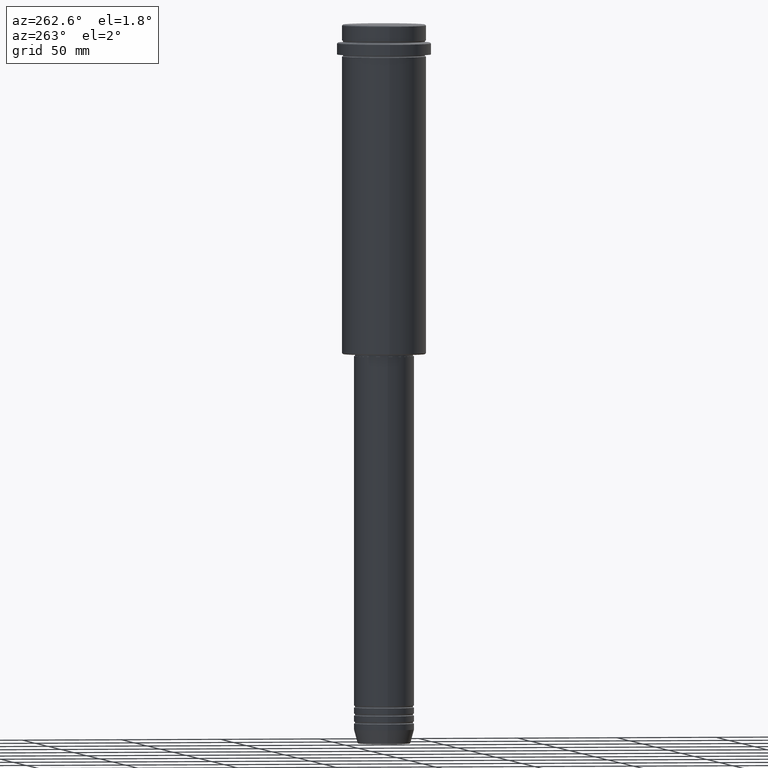
[diagram: clean part render]
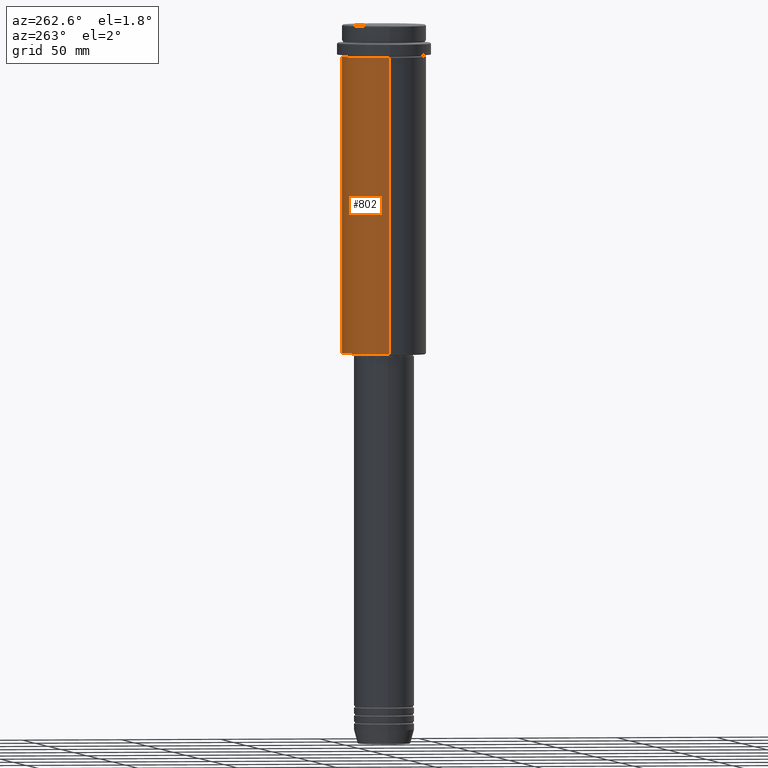
[diagram: same view with one face highlighted and labeled with its STEP entity id]
A machine part, auxiliary view. The second image highlights one B-rep face of the part: STEP entity #802.
In plain terms, the highlighted cylindrical surface (partial cylindrical patch) has radius 21 mm, axis along (-0, -0, 1).
Its self-contained STEP definition (entity closure, byte-faithful):
#56 = ORIENTED_EDGE ( 'NONE', *, *, #212, .T. ) ;
#60 = VERTEX_POINT ( 'NONE', #1044 ) ;
#120 = DIRECTION ( 'NONE',  ( -0.000000000000000000, -0.000000000000000000, 1.000000000000000000 ) ) ;
#137 = EDGE_CURVE ( 'NONE', #389, #60, #1146, .T. ) ;
#148 = CARTESIAN_POINT ( 'NONE',  ( -20.99999999999999645, 2.571758278209441267E-15, 0.000000000000000000 ) ) ;
#159 = CYLINDRICAL_SURFACE ( 'NONE', #853, 20.99999999999999645 ) ;
#167 = DIRECTION ( 'NONE',  ( -0.000000000000000000, -0.000000000000000000, 1.000000000000000000 ) ) ;
#212 = EDGE_CURVE ( 'NONE', #980, #921, #269, .T. ) ;
#231 = VECTOR ( 'NONE', #764, 1000.000000000000000 ) ;
#240 = CARTESIAN_POINT ( 'NONE',  ( 0.000000000000000000, 0.000000000000000000, -16.00000000000000355 ) ) ;
#249 = AXIS2_PLACEMENT_3D ( 'NONE', #240, #120, #689 ) ;
#257 = DIRECTION ( 'NONE',  ( -0.000000000000000000, -0.000000000000000000, 1.000000000000000000 ) ) ;
#269 = CIRCLE ( 'NONE', #314, 20.99999999999999645 ) ;
#305 = CARTESIAN_POINT ( 'NONE',  ( 20.99999999999999645, 0.000000000000000000, 0.000000000000000000 ) ) ;
#314 = AXIS2_PLACEMENT_3D ( 'NONE', #1144, #1053, #958 ) ;
#331 = CARTESIAN_POINT ( 'NONE',  ( 20.99999999999999645, 0.000000000000000000, -16.00000000000000355 ) ) ;
#357 = DIRECTION ( 'NONE',  ( 1.000000000000000000, 0.000000000000000000, 0.000000000000000000 ) ) ;
#370 = LINE ( 'NONE', #148, #1086 ) ;
#389 = VERTEX_POINT ( 'NONE', #331 ) ;
#399 = LINE ( 'NONE', #305, #231 ) ;
#427 = EDGE_LOOP ( 'NONE', ( #56, #600, #1103, #930 ) ) ;
#600 = ORIENTED_EDGE ( 'NONE', *, *, #863, .T. ) ;
#689 = DIRECTION ( 'NONE',  ( 1.000000000000000000, 0.000000000000000000, 0.000000000000000000 ) ) ;
#741 = CARTESIAN_POINT ( 'NONE',  ( -20.99999999999999645, 2.571758278209441267E-15, -164.5000000000001137 ) ) ;
#764 = DIRECTION ( 'NONE',  ( -0.000000000000000000, -0.000000000000000000, 1.000000000000000000 ) ) ;
#802 = ADVANCED_FACE ( 'NONE', ( #1135 ), #159, .T. ) ;
#842 = CARTESIAN_POINT ( 'NONE',  ( 20.99999999999999645, 0.000000000000000000, -164.5000000000001137 ) ) ;
#853 = AXIS2_PLACEMENT_3D ( 'NONE', #1150, #167, #357 ) ;
#863 = EDGE_CURVE ( 'NONE', #921, #60, #370, .T. ) ;
#921 = VERTEX_POINT ( 'NONE', #741 ) ;
#930 = ORIENTED_EDGE ( 'NONE', *, *, #968, .F. ) ;
#958 = DIRECTION ( 'NONE',  ( -1.000000000000000000, 0.000000000000000000, 0.000000000000000000 ) ) ;
#968 = EDGE_CURVE ( 'NONE', #980, #389, #399, .T. ) ;
#980 = VERTEX_POINT ( 'NONE', #842 ) ;
#1044 = CARTESIAN_POINT ( 'NONE',  ( -20.99999999999999645, 2.571758278209441267E-15, -16.00000000000000355 ) ) ;
#1053 = DIRECTION ( 'NONE',  ( -0.000000000000000000, -0.000000000000000000, 1.000000000000000000 ) ) ;
#1086 = VECTOR ( 'NONE', #257, 1000.000000000000000 ) ;
#1103 = ORIENTED_EDGE ( 'NONE', *, *, #137, .F. ) ;
#1135 = FACE_OUTER_BOUND ( 'NONE', #427, .T. ) ;
#1144 = CARTESIAN_POINT ( 'NONE',  ( 0.000000000000000000, 0.000000000000000000, -164.5000000000001137 ) ) ;
#1146 = CIRCLE ( 'NONE', #249, 20.99999999999999645 ) ;
#1150 = CARTESIAN_POINT ( 'NONE',  ( 0.000000000000000000, 0.000000000000000000, 0.000000000000000000 ) ) ;